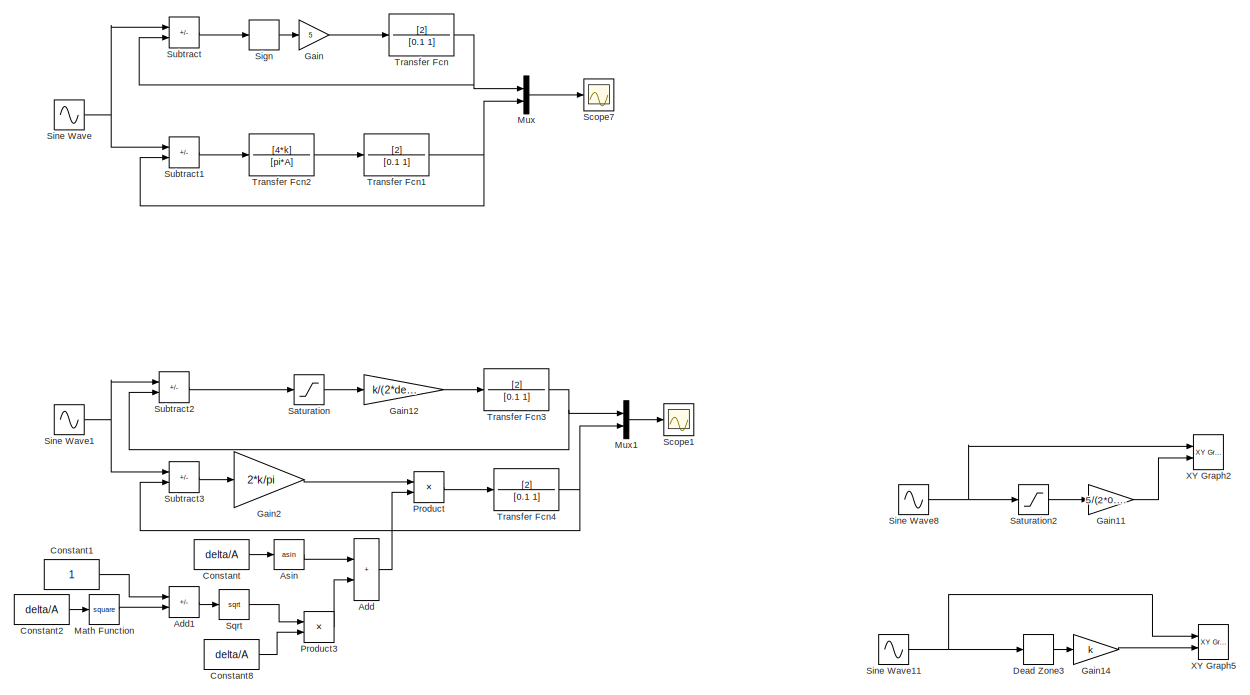
[diagram: root canvas - part 1/5, full width, top band]
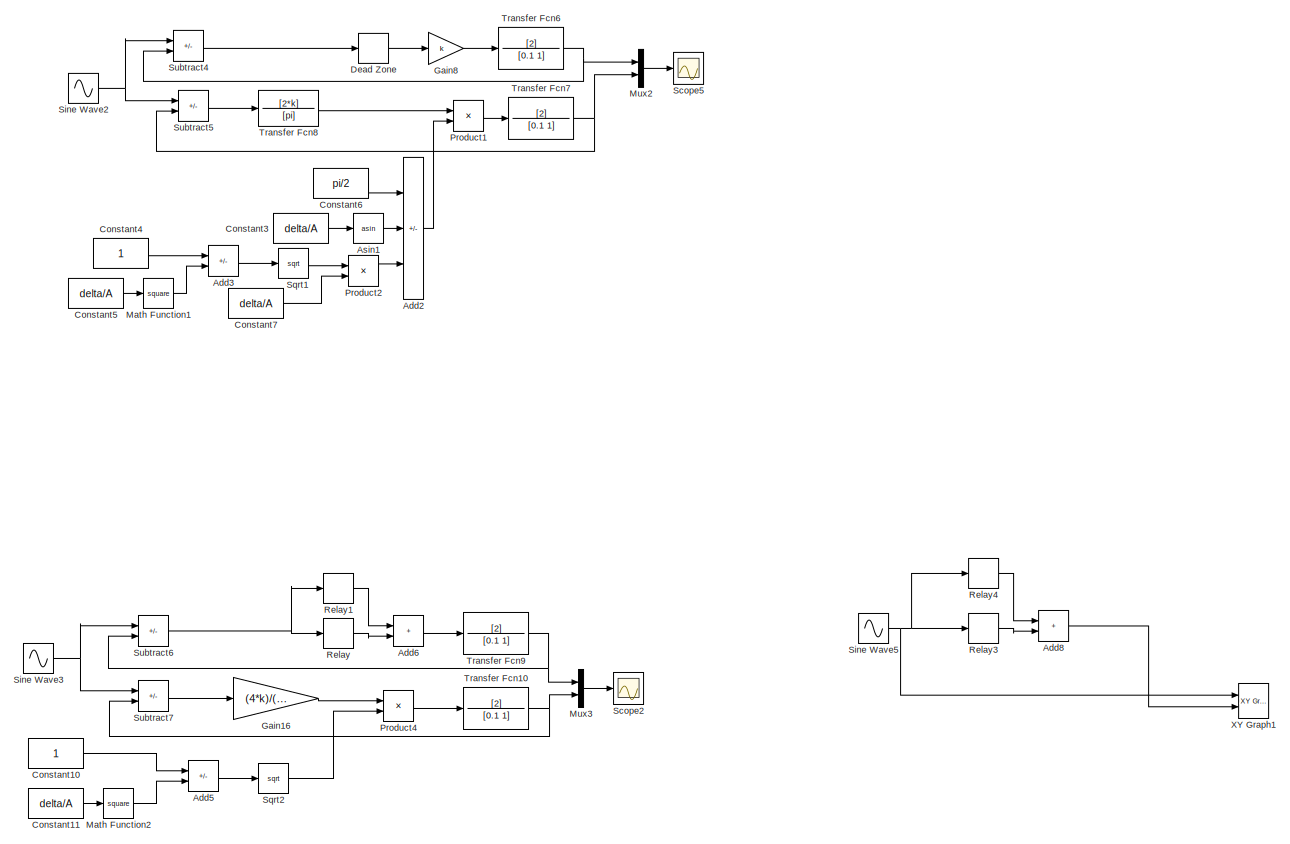
[diagram: root canvas - part 2/5, full width, middle band]
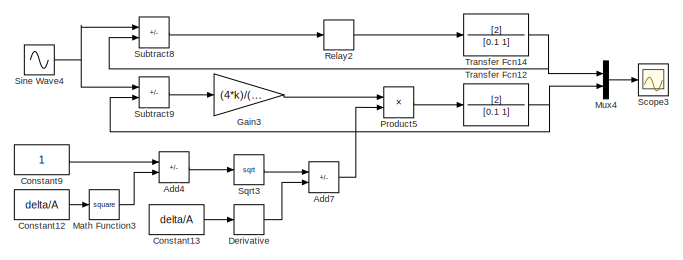
[diagram: root canvas - part 3/5, central region]
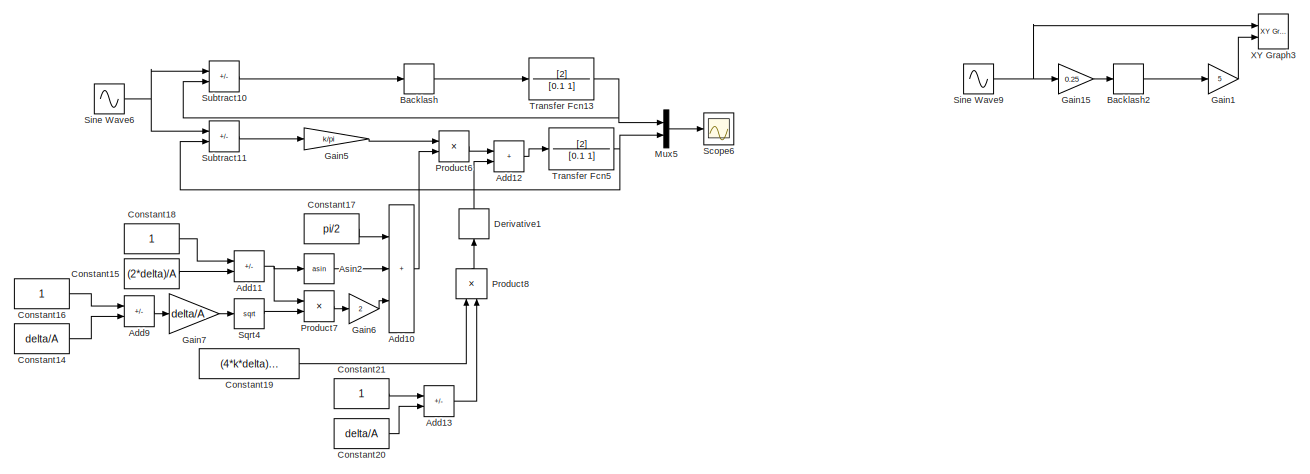
[diagram: root canvas - part 4/5, full width, bottom band]
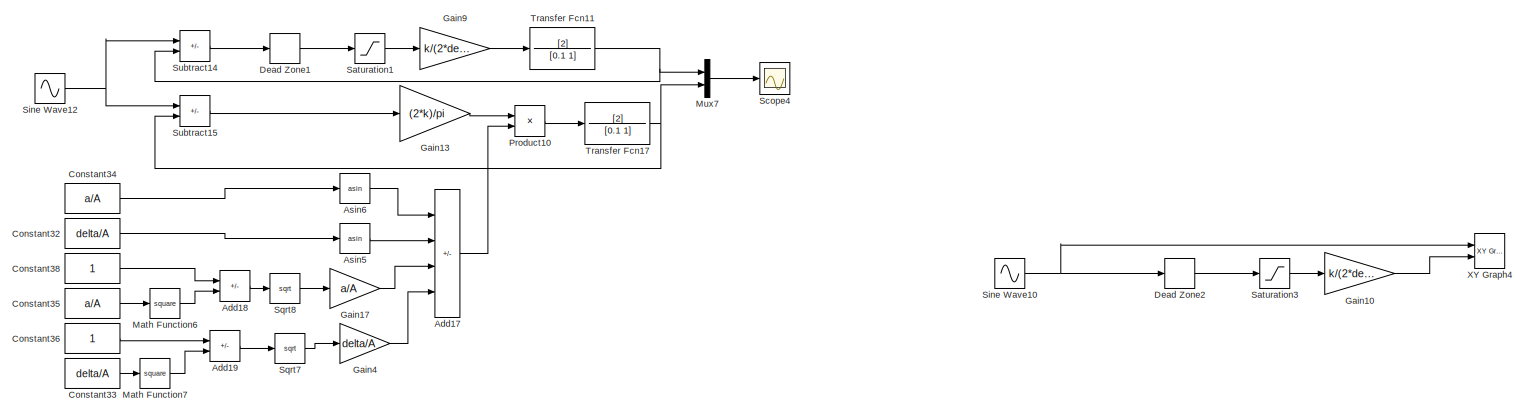
[diagram: root canvas - part 5/5, full width, bottom band]
MODEL slx_5c17e97880e0
KIND model
CONFIG AbsTol = auto
CONFIG EnableMultiTasking = off
CONFIG FixedStep = 0.00001
CONFIG MaxStep = auto
CONFIG MinStep = auto
CONFIG RelTol = 1e-3
CONFIG SampleTimeConstraint = Unconstrained
CONFIG SolverName = FixedStepAuto
CONFIG StartTime = 0.0
CONFIG StopTime = 5
BLOCK [Sum] Add
  IconShape = rectangular
  Ports = [2, 1]
BLOCK [Sum] Add1
  IconShape = rectangular
  Inputs = +-
  Ports = [2, 1]
BLOCK [Sum] Add10
  IconShape = rectangular
  Inputs = +++
  Ports = [3, 1]
BLOCK [Sum] Add11
  IconShape = rectangular
  Inputs = +-
  Ports = [2, 1]
BLOCK [Sum] Add12
  IconShape = rectangular
  Ports = [2, 1]
BLOCK [Sum] Add13
  IconShape = rectangular
  Inputs = -+
  Ports = [2, 1]
BLOCK [Sum] Add17
  IconShape = rectangular
  Inputs = +-+-
  Ports = [4, 1]
BLOCK [Sum] Add18
  IconShape = rectangular
  Inputs = +-
  Ports = [2, 1]
BLOCK [Sum] Add19
  IconShape = rectangular
  Inputs = +-
  Ports = [2, 1]
BLOCK [Sum] Add2
  IconShape = rectangular
  Inputs = +--
  Ports = [3, 1]
BLOCK [Sum] Add3
  IconShape = rectangular
  Inputs = +-
  Ports = [2, 1]
BLOCK [Sum] Add4
  IconShape = rectangular
  Inputs = +-
  Ports = [2, 1]
BLOCK [Sum] Add5
  IconShape = rectangular
  Inputs = +-
  Ports = [2, 1]
BLOCK [Sum] Add6
  IconShape = rectangular
  Ports = [2, 1]
BLOCK [Sum] Add7
  IconShape = rectangular
  Inputs = +-
  Ports = [2, 1]
BLOCK [Sum] Add8
  Commented = on
  IconShape = rectangular
  Ports = [2, 1]
BLOCK [Sum] Add9
  IconShape = rectangular
  Inputs = +-
  Ports = [2, 1]
BLOCK [Trigonometry] Asin
  Operator = asin
  Ports = [1, 1]
BLOCK [Trigonometry] Asin1
  Operator = asin
  Ports = [1, 1]
BLOCK [Trigonometry] Asin2
  Operator = asin
  Ports = [1, 1]
BLOCK [Trigonometry] Asin5
  Operator = asin
  Ports = [1, 1]
BLOCK [Trigonometry] Asin6
  Operator = asin
  Ports = [1, 1]
BLOCK [Backlash] Backlash
  BacklashWidth = delta
BLOCK [Backlash] Backlash2
  Commented = on
BLOCK [Constant] Constant
  Value = delta/A
BLOCK [Constant] Constant1
BLOCK [Constant] Constant10
BLOCK [Constant] Constant11
  Value = delta/A
BLOCK [Constant] Constant12
  Value = delta/A
BLOCK [Constant] Constant13
  Value = delta/A
BLOCK [Constant] Constant14
  Value = delta/A
BLOCK [Constant] Constant15
  Value = (2*delta)/A
BLOCK [Constant] Constant16
BLOCK [Constant] Constant17
  Value = pi/2
BLOCK [Constant] Constant18
BLOCK [Constant] Constant19
  Value = (4*k*delta)/(pi*A)
BLOCK [Constant] Constant2
  Value = delta/A
BLOCK [Constant] Constant20
  Value = delta/A
BLOCK [Constant] Constant21
BLOCK [Constant] Constant3
  Value = delta/A
BLOCK [Constant] Constant32
  Value = delta/A
BLOCK [Constant] Constant33
  Value = delta/A
BLOCK [Constant] Constant34
  Value = a/A
BLOCK [Constant] Constant35
  Value = a/A
BLOCK [Constant] Constant36
BLOCK [Constant] Constant38
BLOCK [Constant] Constant4
BLOCK [Constant] Constant5
  Value = delta/A
BLOCK [Constant] Constant6
  Value = pi/2
BLOCK [Constant] Constant7
  Value = delta/A
BLOCK [Constant] Constant8
  Value = delta/A
BLOCK [Constant] Constant9
BLOCK [DeadZone] Dead Zone
  LowerValue = -delta
  UpperValue = delta
BLOCK [DeadZone] Dead Zone1
  LowerValue = -delta
  UpperValue = delta
BLOCK [DeadZone] Dead Zone2
  Commented = on
  LowerValue = -delta
  UpperValue = delta
BLOCK [DeadZone] Dead Zone3
  Commented = on
  LowerValue = -delta
  UpperValue = delta
BLOCK [Derivative] Derivative
BLOCK [Derivative] Derivative1
  NameLocation = right
BLOCK [Gain] Gain
  Gain = 5
BLOCK [Gain] Gain1
  Commented = on
  Gain = 5
BLOCK [Gain] Gain10
  Commented = on
  Gain = k/(2*delta)
BLOCK [Gain] Gain11
  Commented = on
  Gain = 5/(2*0.5)
BLOCK [Gain] Gain12
  Gain = k/(2*delta)
BLOCK [Gain] Gain13
  Gain = (2*k)/pi
BLOCK [Gain] Gain14
  Commented = on
  Gain = k
BLOCK [Gain] Gain15
  Commented = on
  Gain = 0.25
BLOCK [Gain] Gain16
  Gain = (4*k)/(A*pi)
BLOCK [Gain] Gain17
  Gain = a/A
BLOCK [Gain] Gain2
  Gain = 2*k/pi
BLOCK [Gain] Gain3
  Gain = (4*k)/(pi*A)
BLOCK [Gain] Gain4
  Gain = delta/A
BLOCK [Gain] Gain5
  Gain = k/pi
BLOCK [Gain] Gain6
  Gain = 2
BLOCK [Gain] Gain7
  Gain = delta/A
BLOCK [Gain] Gain8
  Gain = k
BLOCK [Gain] Gain9
  Gain = k/(2*delta)
BLOCK [Math] Math Function
  Operator = square
  Ports = [1, 1]
BLOCK [Math] Math Function1
  Operator = square
  Ports = [1, 1]
BLOCK [Math] Math Function2
  Operator = square
  Ports = [1, 1]
BLOCK [Math] Math Function3
  Operator = square
  Ports = [1, 1]
BLOCK [Math] Math Function6
  Operator = square
  Ports = [1, 1]
BLOCK [Math] Math Function7
  Operator = square
  Ports = [1, 1]
BLOCK [Mux] Mux
  DisplayOption = bar
  Inputs = 2
  Ports = [2, 1]
BLOCK [Mux] Mux1
  DisplayOption = bar
  Inputs = 2
  Ports = [2, 1]
BLOCK [Mux] Mux2
  DisplayOption = bar
  Inputs = 2
  Ports = [2, 1]
BLOCK [Mux] Mux3
  DisplayOption = bar
  Inputs = 2
  Ports = [2, 1]
BLOCK [Mux] Mux4
  DisplayOption = bar
  Inputs = 2
  Ports = [2, 1]
BLOCK [Mux] Mux5
  DisplayOption = bar
  Inputs = 2
  Ports = [2, 1]
BLOCK [Mux] Mux7
  DisplayOption = bar
  Inputs = 2
  Ports = [2, 1]
BLOCK [Product] Product
  Ports = [2, 1]
BLOCK [Product] Product1
  Ports = [2, 1]
BLOCK [Product] Product10
  Ports = [2, 1]
BLOCK [Product] Product2
  Ports = [2, 1]
BLOCK [Product] Product3
  Ports = [2, 1]
BLOCK [Product] Product4
  Ports = [2, 1]
BLOCK [Product] Product5
  Ports = [2, 1]
BLOCK [Product] Product6
  Ports = [2, 1]
BLOCK [Product] Product7
  Ports = [2, 1]
BLOCK [Product] Product8
  NameLocation = right
  Ports = [2, 1]
BLOCK [Relay] Relay
  OffOutputValue = -k
  OffSwitchValue = -delta
  OnOutputValue = 0
  OnSwitchValue = -delta
BLOCK [Relay] Relay1
  OffSwitchValue = delta
  OnOutputValue = k
  OnSwitchValue = delta
BLOCK [Relay] Relay2
  OffOutputValue = -k
  OffSwitchValue = -delta
  OnOutputValue = k
  OnSwitchValue = delta
BLOCK [Relay] Relay3
  Commented = on
  OffOutputValue = -1
  OffSwitchValue = -0.5
  OnOutputValue = 0
  OnSwitchValue = -0.5
BLOCK [Relay] Relay4
  Commented = on
  OffSwitchValue = 0.5
  OnSwitchValue = 0.5
BLOCK [Saturate] Saturation
  LowerLimit = -delta
  UpperLimit = delta
BLOCK [Saturate] Saturation1
  LowerLimit = -(a-delta)
  UpperLimit = a-delta
BLOCK [Saturate] Saturation2
  Commented = on
BLOCK [Saturate] Saturation3
  Commented = on
  LowerLimit = -(a-delta)
  UpperLimit = a-delta
BLOCK [Scope] Scope1
  Floating = off
  NumInputPorts = 1
  Ports = [1]
  ScopeSpecificationString = Simulink.scopes.TimeScopeBlockCfg('CurrentConfiguration', extmgr.ConfigurationSet(extmgr.Configuration('Core','General UI',true,'FigureColor',[1 1 1]),extmgr.Configuration('Core','Source UI',true),extmgr.Configuration('Sources','WiredSimulink',true,'DataLoggingVariableName','ScopeData1'),extmgr.Configuration('Visuals','Time Domain',true,'SerializedDisplays',{struct('MinYLimReal','-6.08106','MaxYLi...<+1781ch>
BLOCK [Scope] Scope2
  Floating = off
  NumInputPorts = 1
  Ports = [1]
  ScopeSpecificationString = Simulink.scopes.TimeScopeBlockCfg('CurrentConfiguration', extmgr.ConfigurationSet(extmgr.Configuration('Core','General UI',true,'FigureColor',[1 1 1]),extmgr.Configuration('Core','Source UI',true),extmgr.Configuration('Sources','WiredSimulink',true,'DataLoggingVariableName','ScopeData3'),extmgr.Configuration('Visuals','Time Domain',true,'SerializedDisplays',{struct('MinYLimReal','-6.75057','MaxYLi...<+1781ch>
BLOCK [Scope] Scope3
  Floating = off
  NumInputPorts = 1
  Ports = [1]
  ScopeSpecificationString = Simulink.scopes.TimeScopeBlockCfg('CurrentConfiguration', extmgr.ConfigurationSet(extmgr.Configuration('Core','General UI',true,'FigureColor',[1 1 1]),extmgr.Configuration('Core','Source UI',true),extmgr.Configuration('Sources','WiredSimulink',true,'DataLoggingVariableName','ScopeData4'),extmgr.Configuration('Visuals','Time Domain',true,'SerializedDisplays',{struct('MinYLimReal','-8.24724','MaxYLi...<+1781ch>
BLOCK [Scope] Scope4
  Floating = off
  NumInputPorts = 1
  Ports = [1]
  ScopeSpecificationString = Simulink.scopes.TimeScopeBlockCfg('CurrentConfiguration', extmgr.ConfigurationSet(extmgr.Configuration('Core','General UI',true,'FigureColor',[1 1 1]),extmgr.Configuration('Core','Source UI',true),extmgr.Configuration('Sources','WiredSimulink',true,'DataLoggingVariableName','ScopeData6'),extmgr.Configuration('Visuals','Time Domain',true,'SerializedDisplays',{struct('MinYLimReal','-6.18828','MaxYLi...<+1781ch>
BLOCK [Scope] Scope5
  Floating = off
  NumInputPorts = 1
  Ports = [1]
  ScopeSpecificationString = Simulink.scopes.TimeScopeBlockCfg('CurrentConfiguration', extmgr.ConfigurationSet(extmgr.Configuration('Core','General UI',true,'FigureColor',[1 1 1]),extmgr.Configuration('Core','Source UI',true),extmgr.Configuration('Sources','WiredSimulink',true,'DataLoggingVariableName','ScopeData2'),extmgr.Configuration('Visuals','Time Domain',true,'SerializedDisplays',{struct('MinYLimReal','-6.72023','MaxYLi...<+1781ch>
BLOCK [Scope] Scope6
  Floating = off
  NumInputPorts = 1
  Ports = [1]
  ScopeSpecificationString = Simulink.scopes.TimeScopeBlockCfg('CurrentConfiguration', extmgr.ConfigurationSet(extmgr.Configuration('Core','General UI',true,'FigureColor',[1 1 1]),extmgr.Configuration('Core','Source UI',true),extmgr.Configuration('Sources','WiredSimulink',true,'DataLoggingVariableName','ScopeData5'),extmgr.Configuration('Visuals','Time Domain',true,'SerializedDisplays',{struct('MinYLimReal','-6.77661','MaxYLi...<+1781ch>
BLOCK [Scope] Scope7
  Floating = off
  NumInputPorts = 1
  Ports = [1]
  ScopeSpecificationString = Simulink.scopes.TimeScopeBlockCfg('CurrentConfiguration', extmgr.ConfigurationSet(extmgr.Configuration('Core','General UI',true,'FigureColor',[1 1 1]),extmgr.Configuration('Core','Source UI',true),extmgr.Configuration('Sources','WiredSimulink',true,'DataLoggingVariableName','ScopeData1'),extmgr.Configuration('Visuals','Time Domain',true,'SerializedDisplays',{struct('MinYLimReal','-1.25029','MaxYLi...<+1781ch>
BLOCK [Signum] Sign
BLOCK [Sin] Sine Wave
  Frequency = 5
  Ports = [0, 1]
  SampleTime = 0
BLOCK [Sin] Sine Wave1
  Amplitude = A
  Frequency = 5
  Ports = [0, 1]
  SampleTime = 0
BLOCK [Sin] Sine Wave10
  Amplitude = 6
  Commented = on
  Frequency = 5
  Ports = [0, 1]
  SampleTime = 0.01
BLOCK [Sin] Sine Wave11
  Amplitude = 3
  Commented = on
  Frequency = 5
  Ports = [0, 1]
  SampleTime = 0.01
BLOCK [Sin] Sine Wave12
  Amplitude = A
  Frequency = 5
  Ports = [0, 1]
  SampleTime = 0
BLOCK [Sin] Sine Wave2
  Amplitude = A
  Frequency = 5
  Ports = [0, 1]
  SampleTime = 0
BLOCK [Sin] Sine Wave3
  Amplitude = A
  Frequency = 5
  Ports = [0, 1]
  SampleTime = 0
BLOCK [Sin] Sine Wave4
  Amplitude = A
  Frequency = 5
  Ports = [0, 1]
  SampleTime = 0
BLOCK [Sin] Sine Wave5
  Amplitude = 5
  Commented = on
  Frequency = 5
  Ports = [0, 1]
  SampleTime = 0
BLOCK [Sin] Sine Wave6
  Amplitude = A
  Frequency = 5
  Ports = [0, 1]
  SampleTime = 0
BLOCK [Sin] Sine Wave8
  Amplitude = 3
  Commented = on
  Frequency = 5
  Ports = [0, 1]
  SampleTime = 0.01
BLOCK [Sin] Sine Wave9
  Amplitude = 15
  Commented = on
  Frequency = 5
  Ports = [0, 1]
  SampleTime = 0.01
BLOCK [Sqrt] Sqrt
BLOCK [Sqrt] Sqrt1
BLOCK [Sqrt] Sqrt2
BLOCK [Sqrt] Sqrt3
BLOCK [Sqrt] Sqrt4
BLOCK [Sqrt] Sqrt7
BLOCK [Sqrt] Sqrt8
BLOCK [Sum] Subtract
  IconShape = rectangular
  Inputs = +-
  Ports = [2, 1]
BLOCK [Sum] Subtract1
  IconShape = rectangular
  Inputs = +-
  Ports = [2, 1]
BLOCK [Sum] Subtract10
  IconShape = rectangular
  Inputs = +-
  Ports = [2, 1]
BLOCK [Sum] Subtract11
  IconShape = rectangular
  Inputs = +-
  Ports = [2, 1]
BLOCK [Sum] Subtract14
  IconShape = rectangular
  Inputs = +-
  Ports = [2, 1]
BLOCK [Sum] Subtract15
  IconShape = rectangular
  Inputs = +-
  Ports = [2, 1]
BLOCK [Sum] Subtract2
  IconShape = rectangular
  Inputs = +-
  Ports = [2, 1]
BLOCK [Sum] Subtract3
  IconShape = rectangular
  Inputs = +-
  Ports = [2, 1]
BLOCK [Sum] Subtract4
  IconShape = rectangular
  Inputs = +-
  Ports = [2, 1]
BLOCK [Sum] Subtract5
  IconShape = rectangular
  Inputs = +-
  Ports = [2, 1]
BLOCK [Sum] Subtract6
  IconShape = rectangular
  Inputs = +-
  Ports = [2, 1]
BLOCK [Sum] Subtract7
  IconShape = rectangular
  Inputs = +-
  Ports = [2, 1]
BLOCK [Sum] Subtract8
  IconShape = rectangular
  Inputs = +-
  Ports = [2, 1]
BLOCK [Sum] Subtract9
  IconShape = rectangular
  Inputs = +-
  Ports = [2, 1]
BLOCK [TransferFcn] Transfer Fcn
  Denominator = [0.1 1]
  Numerator = [2]
BLOCK [TransferFcn] Transfer Fcn1
  Denominator = [0.1 1]
  Numerator = [2]
BLOCK [TransferFcn] Transfer Fcn10
  Denominator = [0.1 1]
  Numerator = [2]
BLOCK [TransferFcn] Transfer Fcn11
  Denominator = [0.1 1]
  Numerator = [2]
BLOCK [TransferFcn] Transfer Fcn12
  Denominator = [0.1 1]
  Numerator = [2]
BLOCK [TransferFcn] Transfer Fcn13
  Denominator = [0.1 1]
  Numerator = [2]
BLOCK [TransferFcn] Transfer Fcn14
  Denominator = [0.1 1]
  Numerator = [2]
BLOCK [TransferFcn] Transfer Fcn17
  Denominator = [0.1 1]
  Numerator = [2]
BLOCK [TransferFcn] Transfer Fcn2
  Denominator = [pi*A]
  Numerator = [4*k]
BLOCK [TransferFcn] Transfer Fcn3
  Denominator = [0.1 1]
  Numerator = [2]
BLOCK [TransferFcn] Transfer Fcn4
  Denominator = [0.1 1]
  Numerator = [2]
BLOCK [TransferFcn] Transfer Fcn5
  Denominator = [0.1 1]
  Numerator = [2]
BLOCK [TransferFcn] Transfer Fcn6
  Denominator = [0.1 1]
  Numerator = [2]
BLOCK [TransferFcn] Transfer Fcn7
  Denominator = [0.1 1]
  Numerator = [2]
BLOCK [TransferFcn] Transfer Fcn8
  Denominator = [pi]
  Numerator = [2*k]
BLOCK [TransferFcn] Transfer Fcn9
  Denominator = [0.1 1]
  Numerator = [2]
BLOCK [Reference] XY Graph1  REF=simulink/Sinks/XY Graph
  Commented = on
  Ports = [2]
  SourceBlock = simulink/Sinks/XY Graph
  SourceProductBaseCode = SL
  SourceType = XY scope.
BLOCK [Reference] XY Graph2  REF=simulink/Sinks/XY Graph
  Commented = on
  Ports = [2]
  SourceBlock = simulink/Sinks/XY Graph
  SourceProductBaseCode = SL
  SourceType = XY scope.
BLOCK [Reference] XY Graph3  REF=simulink/Sinks/XY Graph
  Commented = on
  Ports = [2]
  SourceBlock = simulink/Sinks/XY Graph
  SourceProductBaseCode = SL
  SourceType = XY scope.
BLOCK [Reference] XY Graph4  REF=simulink/Sinks/XY Graph
  Commented = on
  Ports = [2]
  SourceBlock = simulink/Sinks/XY Graph
  SourceProductBaseCode = SL
  SourceType = XY scope.
BLOCK [Reference] XY Graph5  REF=simulink/Sinks/XY Graph
  Commented = on
  Ports = [2]
  SourceBlock = simulink/Sinks/XY Graph
  SourceProductBaseCode = SL
  SourceType = XY scope.
LINE Add10:1 -> Product6:2
NET Add11:1 -> Asin2:1, Product7:1
LINE Add12:1 -> Transfer Fcn5:1
LINE Add13:1 -> Product8:2
LINE Add17:1 -> Product10:2
LINE Add18:1 -> Sqrt8:1
LINE Add19:1 -> Sqrt7:1
LINE Add1:1 -> Sqrt:1
LINE Add2:1 -> Product1:2
LINE Add3:1 -> Sqrt1:1
LINE Add4:1 -> Sqrt3:1
LINE Add5:1 -> Sqrt2:1
LINE Add6:1 -> Transfer Fcn9:1
LINE Add7:1 -> Product5:2
LINE Add8:1 -> XY Graph1:2
LINE Add9:1 -> Gain7:1
LINE Add:1 -> Product:2
LINE Asin1:1 -> Add2:2
LINE Asin2:1 -> Add10:2
LINE Asin5:1 -> Add17:2
LINE Asin6:1 -> Add17:1
LINE Asin:1 -> Add:1
LINE Backlash2:1 -> Gain1:1
LINE Backlash:1 -> Transfer Fcn13:1
LINE Constant10:1 -> Add5:1
LINE Constant11:1 -> Math Function2:1
LINE Constant12:1 -> Math Function3:1
LINE Constant13:1 -> Derivative:1
LINE Constant14:1 -> Add9:2
LINE Constant15:1 -> Add11:2
LINE Constant16:1 -> Add9:1
LINE Constant17:1 -> Add10:1
LINE Constant18:1 -> Add11:1
LINE Constant19:1 -> Product8:1
LINE Constant1:1 -> Add1:1
LINE Constant20:1 -> Add13:2
LINE Constant21:1 -> Add13:1
LINE Constant2:1 -> Math Function:1
LINE Constant32:1 -> Asin5:1
LINE Constant33:1 -> Math Function7:1
LINE Constant34:1 -> Asin6:1
LINE Constant35:1 -> Math Function6:1
LINE Constant36:1 -> Add19:1
LINE Constant38:1 -> Add18:1
LINE Constant3:1 -> Asin1:1
LINE Constant4:1 -> Add3:1
LINE Constant5:1 -> Math Function1:1
LINE Constant6:1 -> Add2:1
LINE Constant7:1 -> Product2:2
LINE Constant8:1 -> Product3:2
LINE Constant9:1 -> Add4:1
LINE Constant:1 -> Asin:1
LINE Dead Zone1:1 -> Saturation1:1
LINE Dead Zone2:1 -> Saturation3:1
LINE Dead Zone3:1 -> Gain14:1
LINE Dead Zone:1 -> Gain8:1
LINE Derivative1:1 -> Add12:2
LINE Derivative:1 -> Add7:2
LINE Gain10:1 -> XY Graph4:2
LINE Gain11:1 -> XY Graph2:2
LINE Gain12:1 -> Transfer Fcn3:1
LINE Gain13:1 -> Product10:1
LINE Gain14:1 -> XY Graph5:2
LINE Gain15:1 -> Backlash2:1
LINE Gain16:1 -> Product4:1
LINE Gain17:1 -> Add17:3
LINE Gain1:1 -> XY Graph3:2
LINE Gain2:1 -> Product:1
LINE Gain3:1 -> Product5:1
LINE Gain4:1 -> Add17:4
LINE Gain5:1 -> Product6:1
LINE Gain6:1 -> Add10:3
LINE Gain7:1 -> Sqrt4:1
LINE Gain8:1 -> Transfer Fcn6:1
LINE Gain9:1 -> Transfer Fcn11:1
LINE Gain:1 -> Transfer Fcn:1
LINE Math Function1:1 -> Add3:2
LINE Math Function2:1 -> Add5:2
LINE Math Function3:1 -> Add4:2
LINE Math Function6:1 -> Add18:2
LINE Math Function7:1 -> Add19:2
LINE Math Function:1 -> Add1:2
LINE Mux1:1 -> Scope1:1
LINE Mux2:1 -> Scope5:1
LINE Mux3:1 -> Scope2:1
LINE Mux4:1 -> Scope3:1
LINE Mux5:1 -> Scope6:1
LINE Mux7:1 -> Scope4:1
LINE Mux:1 -> Scope7:1
LINE Product10:1 -> Transfer Fcn17:1
LINE Product1:1 -> Transfer Fcn7:1
LINE Product2:1 -> Add2:3
LINE Product3:1 -> Add:2
LINE Product4:1 -> Transfer Fcn10:1
LINE Product5:1 -> Transfer Fcn12:1
LINE Product6:1 -> Add12:1
LINE Product7:1 -> Gain6:1
LINE Product8:1 -> Derivative1:1
LINE Product:1 -> Transfer Fcn4:1
LINE Relay1:1 -> Add6:1
LINE Relay2:1 -> Transfer Fcn14:1
LINE Relay3:1 -> Add8:2
LINE Relay4:1 -> Add8:1
LINE Relay:1 -> Add6:2
LINE Saturation1:1 -> Gain9:1
LINE Saturation2:1 -> Gain11:1
LINE Saturation3:1 -> Gain10:1
LINE Saturation:1 -> Gain12:1
LINE Sign:1 -> Gain:1
NET Sine Wave10:1 -> Dead Zone2:1, XY Graph4:1
NET Sine Wave11:1 -> Dead Zone3:1, XY Graph5:1
NET Sine Wave12:1 -> Subtract14:1, Subtract15:1
NET Sine Wave1:1 -> Subtract2:1, Subtract3:1
NET Sine Wave2:1 -> Subtract4:1, Subtract5:1
NET Sine Wave3:1 -> Subtract6:1, Subtract7:1
NET Sine Wave4:1 -> Subtract8:1, Subtract9:1
NET Sine Wave5:1 -> Relay3:1, Relay4:1, XY Graph1:1
NET Sine Wave6:1 -> Subtract10:1, Subtract11:1
NET Sine Wave8:1 -> Saturation2:1, XY Graph2:1
NET Sine Wave9:1 -> Gain15:1, XY Graph3:1
NET Sine Wave:1 -> Subtract1:1, Subtract:1
LINE Sqrt1:1 -> Product2:1
LINE Sqrt2:1 -> Product4:2
LINE Sqrt3:1 -> Add7:1
LINE Sqrt4:1 -> Product7:2
LINE Sqrt7:1 -> Gain4:1
LINE Sqrt8:1 -> Gain17:1
LINE Sqrt:1 -> Product3:1
LINE Subtract10:1 -> Backlash:1
LINE Subtract11:1 -> Gain5:1
LINE Subtract14:1 -> Dead Zone1:1
LINE Subtract15:1 -> Gain13:1
LINE Subtract1:1 -> Transfer Fcn2:1
LINE Subtract2:1 -> Saturation:1
LINE Subtract3:1 -> Gain2:1
LINE Subtract4:1 -> Dead Zone:1
LINE Subtract5:1 -> Transfer Fcn8:1
NET Subtract6:1 -> Relay1:1, Relay:1
LINE Subtract7:1 -> Gain16:1
LINE Subtract8:1 -> Relay2:1
LINE Subtract9:1 -> Gain3:1
LINE Subtract:1 -> Sign:1
NET Transfer Fcn10:1 -> Mux3:2, Subtract7:2
NET Transfer Fcn11:1 -> Mux7:1, Subtract14:2
NET Transfer Fcn12:1 -> Mux4:2, Subtract9:2
NET Transfer Fcn13:1 -> Mux5:1, Subtract10:2
NET Transfer Fcn14:1 -> Mux4:1, Subtract8:2
NET Transfer Fcn17:1 -> Mux7:2, Subtract15:2
NET Transfer Fcn1:1 -> Mux:2, Subtract1:2
LINE Transfer Fcn2:1 -> Transfer Fcn1:1
NET Transfer Fcn3:1 -> Mux1:1, Subtract2:2
NET Transfer Fcn4:1 -> Mux1:2, Subtract3:2
NET Transfer Fcn5:1 -> Mux5:2, Subtract11:2
NET Transfer Fcn6:1 -> Mux2:1, Subtract4:2
NET Transfer Fcn7:1 -> Mux2:2, Subtract5:2
LINE Transfer Fcn8:1 -> Product1:1
NET Transfer Fcn9:1 -> Mux3:1, Subtract6:2
NET Transfer Fcn:1 -> Mux:1, Subtract:2
note: NET lines group one-source signal fan-out (src -> all destinations, sorted); 1:1 wires keep LINE
